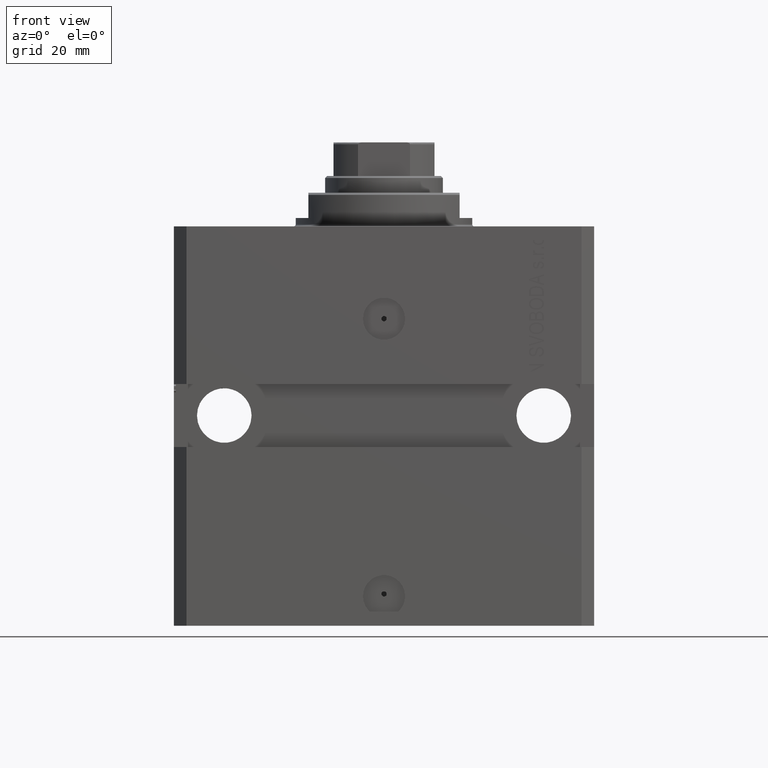
[diagram: clean part render]
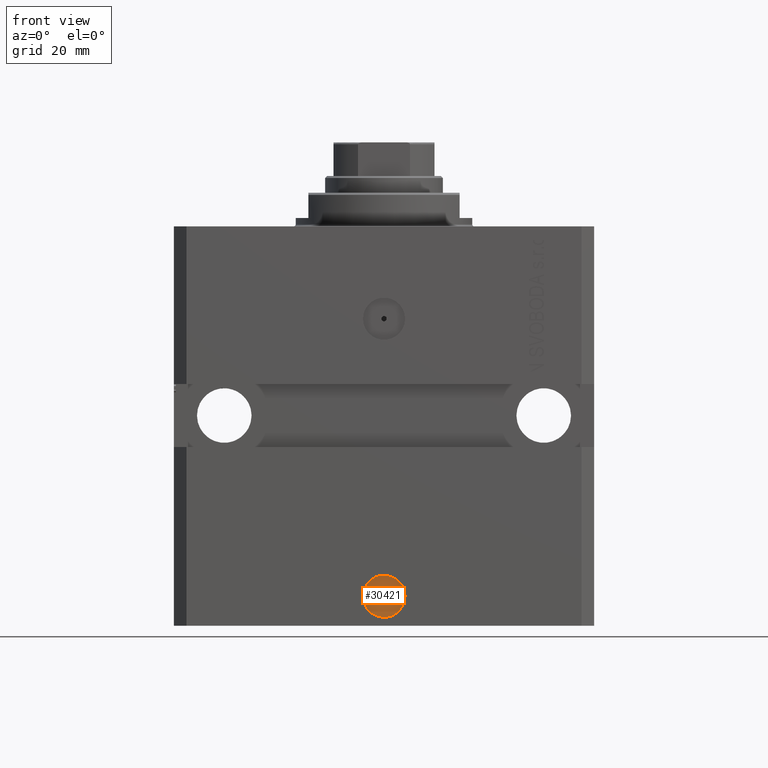
[diagram: same view with one face highlighted and labeled with its STEP entity id]
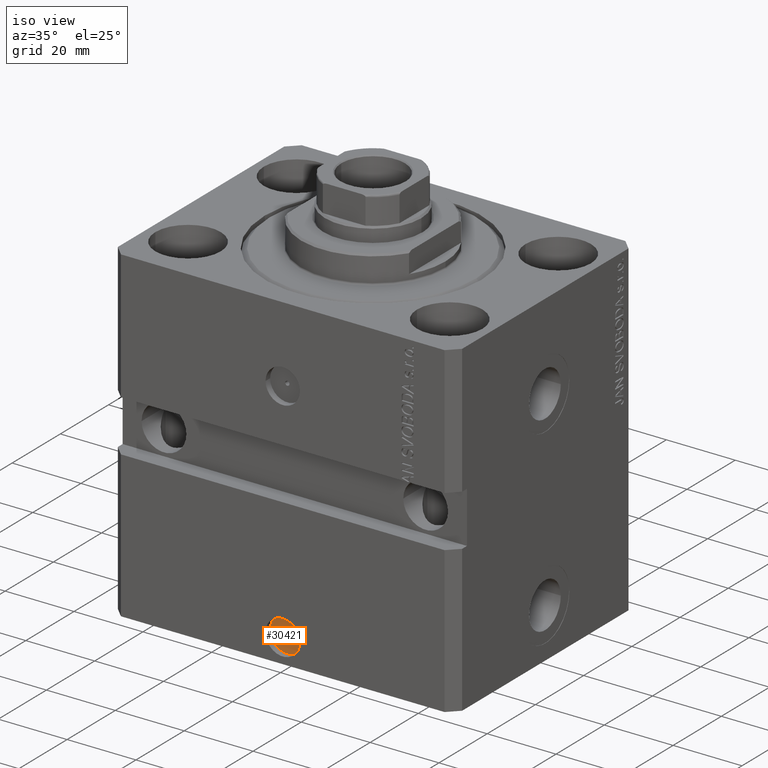
[diagram: same view with one face highlighted and labeled with its STEP entity id]
A machine part, front view. The second image highlights one B-rep face of the part: STEP entity #30421.
A second angle (iso view) of the same face is appended — the face is thin or edge-on in the first view.
In plain terms, the highlighted planar face has unit normal (0, -1, 0).
Its self-contained STEP definition (entity closure, byte-faithful):
#702 = CARTESIAN_POINT ( 'NONE',  ( -5.759807424455006450E-15, -35.60000000000000142, -88.00000000000000000 ) ) ;
#2186 = CARTESIAN_POINT ( 'NONE',  ( -5.759807424455006450E-15, -35.60000000000000142, -88.00000000000000000 ) ) ;
#2871 = EDGE_CURVE ( 'NONE', #40757, #9326, #30371, .T. ) ;
#3176 = DIRECTION ( 'NONE',  ( 1.176083712526788232E-16, -1.000000000000000000, 0.000000000000000000 ) ) ;
#3417 = DIRECTION ( 'NONE',  ( 1.000000000000000000, 0.000000000000000000, 0.000000000000000000 ) ) ;
#3970 = DIRECTION ( 'NONE',  ( 1.176083712526788232E-16, -1.000000000000000000, 0.000000000000000000 ) ) ;
#4462 = CARTESIAN_POINT ( 'NONE',  ( 5.000000000000000000, -35.60000000000000142, -88.00000000000000000 ) ) ;
#5424 = EDGE_CURVE ( 'NONE', #9326, #40757, #5656, .T. ) ;
#5656 = CIRCLE ( 'NONE', #32618, 5.000000000000006217 ) ;
#6132 = ORIENTED_EDGE ( 'NONE', *, *, #5424, .T. ) ;
#6527 = DIRECTION ( 'NONE',  ( 1.176083712526788232E-16, -1.000000000000000000, 0.000000000000000000 ) ) ;
#7462 = ORIENTED_EDGE ( 'NONE', *, *, #2871, .T. ) ;
#7582 = CARTESIAN_POINT ( 'NONE',  ( 4.186858016595366184E-15, -35.60000000000000142, -87.47499999999999432 ) ) ;
#8991 = CIRCLE ( 'NONE', #35954, 0.6250000000000036637 ) ;
#9036 = VERTEX_POINT ( 'NONE', #40725 ) ;
#9155 = DIRECTION ( 'NONE',  ( 1.176083712526788232E-16, -1.000000000000000000, 0.000000000000000000 ) ) ;
#9326 = VERTEX_POINT ( 'NONE', #4462 ) ;
#9673 = FACE_BOUND ( 'NONE', #15662, .T. ) ;
#15180 = CIRCLE ( 'NONE', #25925, 0.6250000000000036637 ) ;
#15662 = EDGE_LOOP ( 'NONE', ( #37998, #45687 ) ) ;
#16866 = EDGE_CURVE ( 'NONE', #33934, #9036, #15180, .T. ) ;
#17639 = FACE_OUTER_BOUND ( 'NONE', #38698, .T. ) ;
#19992 = CARTESIAN_POINT ( 'NONE',  ( -5.000000000000012434, -35.60000000000000142, -88.00000000000000000 ) ) ;
#21357 = DIRECTION ( 'NONE',  ( 1.000000000000000000, 0.000000000000000000, 0.000000000000000000 ) ) ;
#23144 = DIRECTION ( 'NONE',  ( 1.176083712526788232E-16, -1.000000000000000000, 0.000000000000000000 ) ) ;
#25925 = AXIS2_PLACEMENT_3D ( 'NONE', #42200, #9155, #39058 ) ;
#29342 = AXIS2_PLACEMENT_3D ( 'NONE', #2186, #6527, #32338 ) ;
#30371 = CIRCLE ( 'NONE', #34965, 5.000000000000006217 ) ;
#30375 = DIRECTION ( 'NONE',  ( 1.000000000000000000, 0.000000000000000000, 0.000000000000000000 ) ) ;
#30421 = ADVANCED_FACE ( 'NONE', ( #9673, #17639 ), #39575, .T. ) ;
#32338 = DIRECTION ( 'NONE',  ( 1.000000000000000000, 1.176083712526788232E-16, 0.000000000000000000 ) ) ;
#32618 = AXIS2_PLACEMENT_3D ( 'NONE', #47538, #3176, #3417 ) ;
#33934 = VERTEX_POINT ( 'NONE', #37340 ) ;
#34965 = AXIS2_PLACEMENT_3D ( 'NONE', #702, #23144, #30375 ) ;
#35148 = EDGE_CURVE ( 'NONE', #9036, #33934, #8991, .T. ) ;
#35954 = AXIS2_PLACEMENT_3D ( 'NONE', #7582, #3970, #21357 ) ;
#37340 = CARTESIAN_POINT ( 'NONE',  ( 0.6250000000000078826, -35.60000000000000142, -87.47499999999999432 ) ) ;
#37998 = ORIENTED_EDGE ( 'NONE', *, *, #16866, .F. ) ;
#38698 = EDGE_LOOP ( 'NONE', ( #6132, #7462 ) ) ;
#39058 = DIRECTION ( 'NONE',  ( 1.000000000000000000, 0.000000000000000000, 0.000000000000000000 ) ) ;
#39575 = PLANE ( 'NONE',  #29342 ) ;
#40725 = CARTESIAN_POINT ( 'NONE',  ( -0.6249999999999994449, -35.60000000000000142, -87.47499999999999432 ) ) ;
#40757 = VERTEX_POINT ( 'NONE', #19992 ) ;
#42200 = CARTESIAN_POINT ( 'NONE',  ( 4.186858016595366184E-15, -35.60000000000000142, -87.47499999999999432 ) ) ;
#45687 = ORIENTED_EDGE ( 'NONE', *, *, #35148, .F. ) ;
#47538 = CARTESIAN_POINT ( 'NONE',  ( -5.759807424455006450E-15, -35.60000000000000142, -88.00000000000000000 ) ) ;